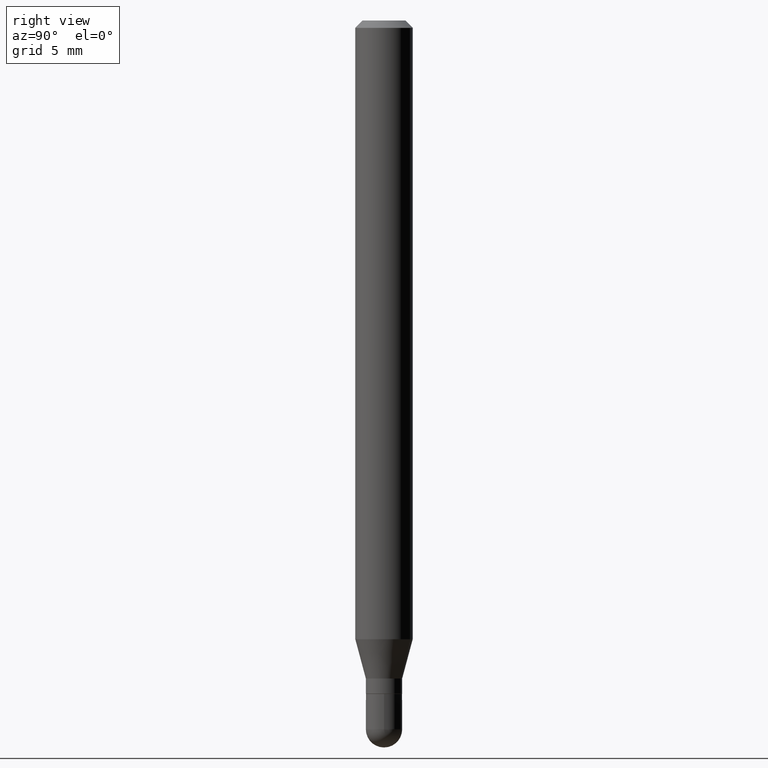
[diagram: clean part render]
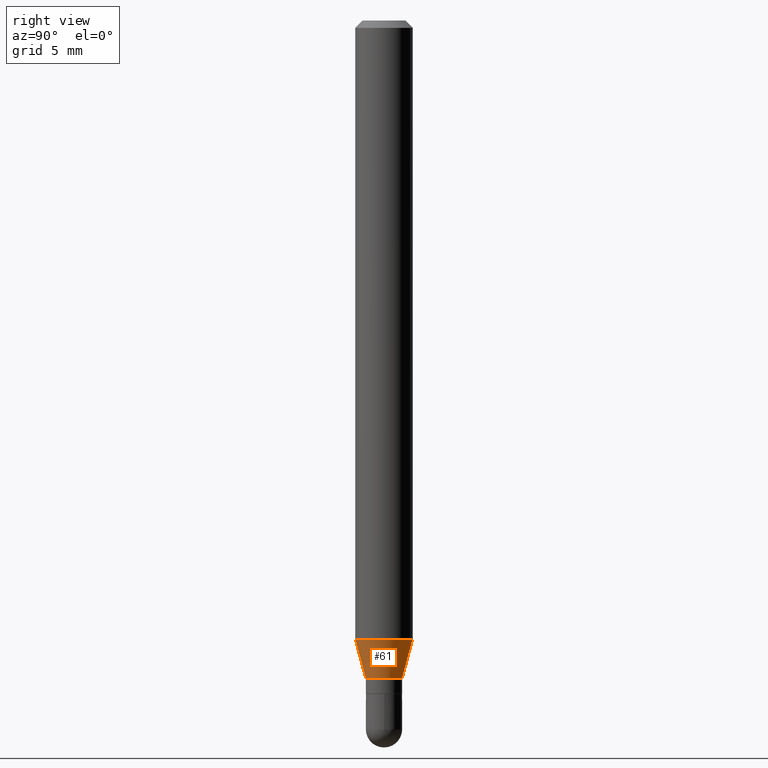
[diagram: same view with one face highlighted and labeled with its STEP entity id]
A machine part, right view. The second image highlights one B-rep face of the part: STEP entity #61.
In plain terms, the highlighted conical surface has half-angle 15 deg.
Its self-contained STEP definition (entity closure, byte-faithful):
#11 = DIRECTION ( 'NONE',  ( -6.982962677686265133E-15, -1.000000000000000000, 0.000000000000000000 ) ) ;
#12 = ORIENTED_EDGE ( 'NONE', *, *, #148, .F. ) ;
#31 = DIRECTION ( 'NONE',  ( -2.445416084578850208E-29, 3.491556839184075306E-15, 1.000000000000000000 ) ) ;
#37 = CARTESIAN_POINT ( 'NONE',  ( 4.195754854663699134E-16, 0.05904999999999551580, -1.273301100016134058 ) ) ;
#40 = CIRCLE ( 'NONE', #328, 0.03739999999999992636 ) ;
#60 = EDGE_CURVE ( 'NONE', #440, #263, #335, .T. ) ;
#61 = ADVANCED_FACE ( 'NONE', ( #290 ), #425, .T. ) ;
#66 = CARTESIAN_POINT ( 'NONE',  ( -4.123439461173431685E-16, -0.05905000000000448085, -1.273301100016133613 ) ) ;
#71 = LINE ( 'NONE', #511, #74 ) ;
#74 = VECTOR ( 'NONE', #92, 39.37007874015748143 ) ;
#92 = DIRECTION ( 'NONE',  ( -1.807323732225332900E-15, -0.2588190451025185745, 0.9659258262890689783 ) ) ;
#118 = CARTESIAN_POINT ( 'NONE',  ( -2.611628041454327257E-16, -0.03740000000000465175, -1.354099999999999859 ) ) ;
#134 = DIRECTION ( 'NONE',  ( -6.982962677686265133E-15, -1.000000000000000000, 0.000000000000000000 ) ) ;
#148 = EDGE_CURVE ( 'NONE', #192, #263, #361, .T. ) ;
#178 = AXIS2_PLACEMENT_3D ( 'NONE', #254, #31, #423 ) ;
#192 = VERTEX_POINT ( 'NONE', #66 ) ;
#193 = DIRECTION ( 'NONE',  ( -2.445416084578850208E-29, 3.491556839184075306E-15, 1.000000000000000000 ) ) ;
#211 = DIRECTION ( 'NONE',  ( -2.445416084578850208E-29, 3.491556839184075306E-15, 1.000000000000000000 ) ) ;
#220 = ORIENTED_EDGE ( 'NONE', *, *, #266, .T. ) ;
#254 = CARTESIAN_POINT ( 'NONE',  ( 3.113750990491396725E-29, -4.445803164101938661E-15, -1.273301100016133836 ) ) ;
#263 = VERTEX_POINT ( 'NONE', #37 ) ;
#266 = EDGE_CURVE ( 'NONE', #387, #440, #40, .T. ) ;
#290 = FACE_OUTER_BOUND ( 'NONE', #412, .T. ) ;
#302 = ORIENTED_EDGE ( 'NONE', *, *, #60, .T. ) ;
#328 = AXIS2_PLACEMENT_3D ( 'NONE', #366, #193, #11 ) ;
#335 = LINE ( 'NONE', #498, #379 ) ;
#361 = CIRCLE ( 'NONE', #178, 0.05904999999999999832 ) ;
#366 = CARTESIAN_POINT ( 'NONE',  ( 3.311337920128220796E-29, -4.727917115939155716E-15, -1.354099999999999859 ) ) ;
#379 = VECTOR ( 'NONE', #494, 39.37007874015748143 ) ;
#387 = VERTEX_POINT ( 'NONE', #118 ) ;
#412 = EDGE_LOOP ( 'NONE', ( #220, #302, #12, #426 ) ) ;
#421 = AXIS2_PLACEMENT_3D ( 'NONE', #454, #211, #134 ) ;
#423 = DIRECTION ( 'NONE',  ( -6.982962677686265922E-15, -1.000000000000000000, 4.626330217890369336E-15 ) ) ;
#425 = CONICAL_SURFACE ( 'NONE', #421, 0.03739999999999992636, 0.2617993877991506846 ) ;
#426 = ORIENTED_EDGE ( 'NONE', *, *, #503, .F. ) ;
#440 = VERTEX_POINT ( 'NONE', #482 ) ;
#454 = CARTESIAN_POINT ( 'NONE',  ( 3.311337920128220796E-29, -4.727917115939155716E-15, -1.354099999999999859 ) ) ;
#482 = CARTESIAN_POINT ( 'NONE',  ( 3.426592343203402424E-16, 0.03739999999999519403, -1.354099999999999859 ) ) ;
#494 = DIRECTION ( 'NONE',  ( 1.839019923739603076E-15, 0.2588190451025253469, 0.9659258262890670910 ) ) ;
#498 = CARTESIAN_POINT ( 'NONE',  ( 2.657429831743100291E-16, 0.03739999999999519403, -1.354099999999999859 ) ) ;
#503 = EDGE_CURVE ( 'NONE', #387, #192, #71, .T. ) ;
#511 = CARTESIAN_POINT ( 'NONE',  ( -2.611628041454327257E-16, -0.03740000000000465175, -1.354099999999999859 ) ) ;